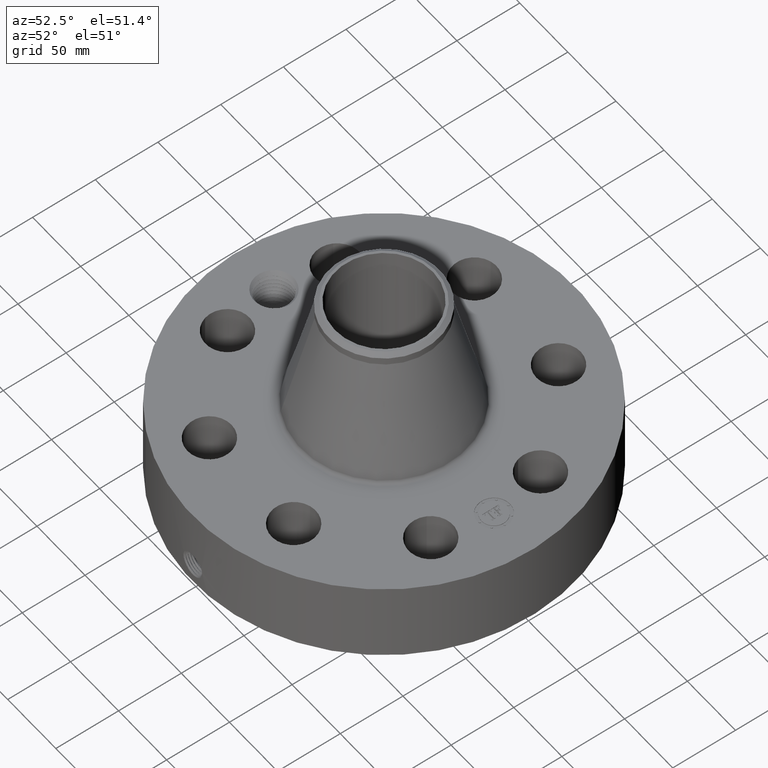
[diagram: clean part render]
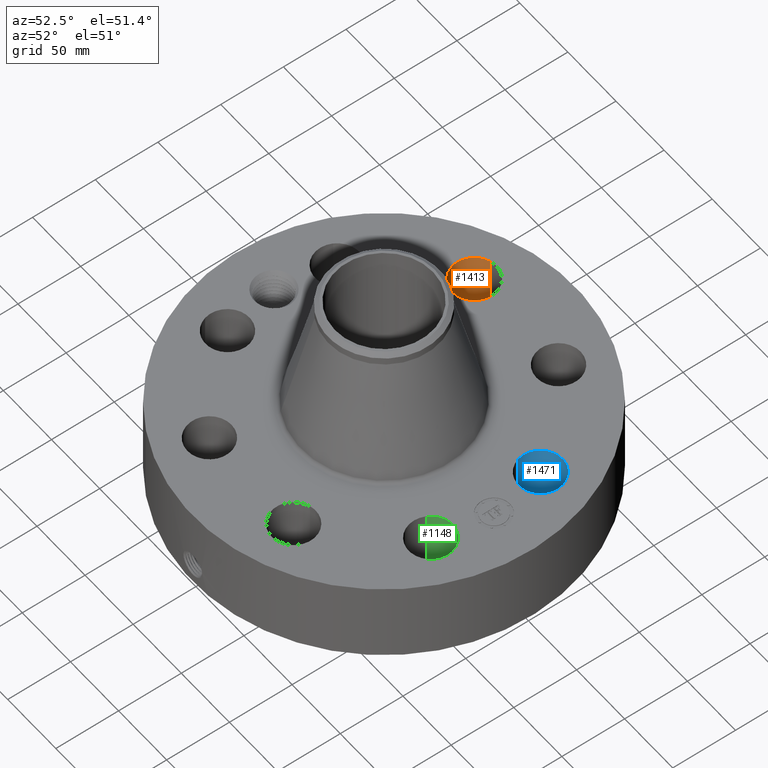
[diagram: same view with three faces highlighted in distinct colors, each labeled with its STEP entity id]
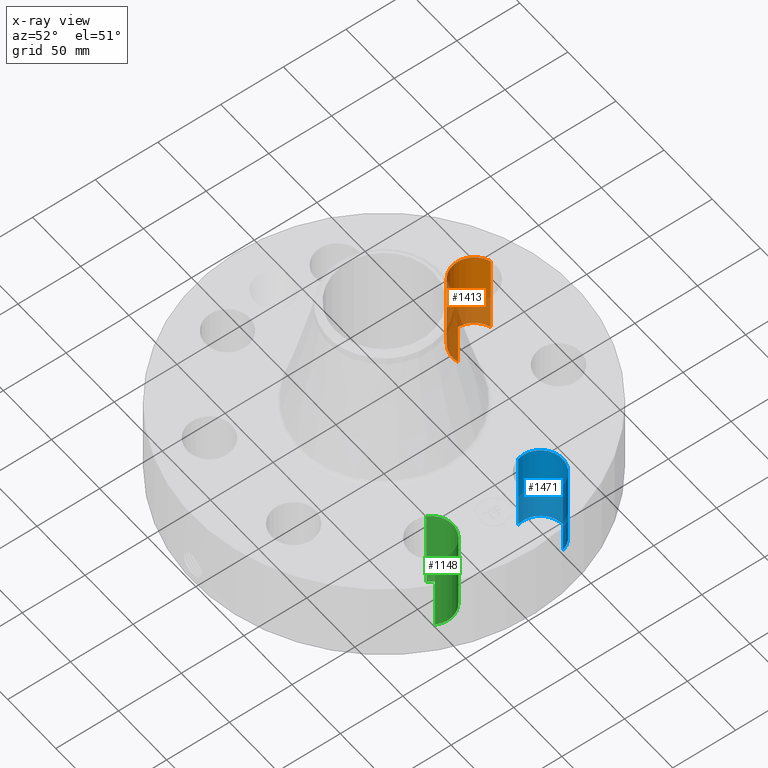
[diagram: x-ray of the same camera — body ghosted, the three highlighted faces saturated]
A machine part, auxiliary view with three faces highlighted in distinct colors.
The next image is the same camera in x-ray (body ghosted, the three faces saturated) — at least one of them is partly hidden behind the body in this view.
Their STEP definitions:

[orange] entity #1413 — the highlighted cylindrical surface (edge-blend (fillet) strip) has radius 17.526 mm, axis along (0, 0, -1).
#336=AXIS2_PLACEMENT_3D('Circle Axis2P3D',#334,#335,$) ;
#666=AXIS2_PLACEMENT_3D('Circle Axis2P3D',#664,#665,$) ;
#1395=AXIS2_PLACEMENT_3D('Cylinder Axis2P3D',#1392,#1393,#1394) ;
#334=CARTESIAN_POINT('Axis2P3D Location',(-1.72207544565,4.15745789632,0.250000000001)) ;
#338=CARTESIAN_POINT('Vertex',(-1.52781316916,3.49536865163,0.250000000001)) ;
#340=CARTESIAN_POINT('Vertex',(-1.91633772214,4.81954714101,0.250000000001)) ;
#659=CARTESIAN_POINT('Vertex',(-1.91633772214,4.81954714101,2.87000000001)) ;
#661=CARTESIAN_POINT('Vertex',(-1.52781316916,3.49536865163,2.87000000001)) ;
#664=CARTESIAN_POINT('Axis2P3D Location',(-1.72207544565,4.15745789632,2.87000000001)) ;
#1392=CARTESIAN_POINT('Axis2P3D Location',(-1.72207544565,4.15745789632,2.86606299214)) ;
#1397=CARTESIAN_POINT('Line Origine',(-1.52781316916,3.49536865163,1.56000000001)) ;
#1402=CARTESIAN_POINT('Line Origine',(-1.91633772214,4.81954714101,1.56000000001)) ;
#335=DIRECTION('Axis2P3D Direction',(0.,0.,-0.0393700787402)) ;
#665=DIRECTION('Axis2P3D Direction',(0.,0.,-0.0393700787402)) ;
#1393=DIRECTION('Axis2P3D Direction',(0.,0.,-0.0393700787402)) ;
#1394=DIRECTION('Axis2P3D XDirection',(-0.0110842335096,0.0377775444876,0.)) ;
#1398=DIRECTION('Vector Direction',(0.,0.,-0.0393700787402)) ;
#1403=DIRECTION('Vector Direction',(0.,0.,-0.0393700787402)) ;
#1399=VECTOR('Line Direction',#1398,0.0393700787402) ;
#1404=VECTOR('Line Direction',#1403,0.0393700787402) ;
#1408=ORIENTED_EDGE('',*,*,#1401,.F.) ;
#1409=ORIENTED_EDGE('',*,*,#342,.T.) ;
#1410=ORIENTED_EDGE('',*,*,#1406,.T.) ;
#1411=ORIENTED_EDGE('',*,*,#668,.F.) ;
#1413=ADVANCED_FACE('PartBody',(#1412),#1396,.F.) ;
#337=CIRCLE('generated circle',#336,0.690000000003) ;
#667=CIRCLE('generated circle',#666,0.690000000003) ;
#1396=CYLINDRICAL_SURFACE('generated cylinder',#1395,0.690000000003) ;
#342=EDGE_CURVE('',#339,#341,#337,.T.) ;
#668=EDGE_CURVE('',#662,#660,#667,.T.) ;
#1401=EDGE_CURVE('',#339,#662,#1400,.F.) ;
#1406=EDGE_CURVE('',#341,#660,#1405,.F.) ;
#1407=EDGE_LOOP('',(#1408,#1409,#1410,#1411)) ;
#1412=FACE_OUTER_BOUND('',#1407,.T.) ;
#1400=LINE('Line',#1397,#1399) ;
#1405=LINE('Line',#1402,#1404) ;
#339=VERTEX_POINT('',#338) ;
#341=VERTEX_POINT('',#340) ;
#660=VERTEX_POINT('',#659) ;
#662=VERTEX_POINT('',#661) ;

[blue] entity #1471 — the highlighted cylindrical surface (edge-blend (fillet) strip) has radius 17.526 mm, axis along (0, 0, -1).
#372=AXIS2_PLACEMENT_3D('Circle Axis2P3D',#370,#371,$) ;
#702=AXIS2_PLACEMENT_3D('Circle Axis2P3D',#700,#701,$) ;
#1453=AXIS2_PLACEMENT_3D('Cylinder Axis2P3D',#1450,#1451,#1452) ;
#370=CARTESIAN_POINT('Axis2P3D Location',(4.15745789632,1.72207544565,0.250000000001)) ;
#374=CARTESIAN_POINT('Vertex',(3.49536865163,1.52781316916,0.250000000001)) ;
#376=CARTESIAN_POINT('Vertex',(4.81954714101,1.91633772214,0.250000000001)) ;
#695=CARTESIAN_POINT('Vertex',(4.81954714101,1.91633772214,2.87000000001)) ;
#697=CARTESIAN_POINT('Vertex',(3.49536865163,1.52781316916,2.87000000001)) ;
#700=CARTESIAN_POINT('Axis2P3D Location',(4.15745789632,1.72207544565,2.87000000001)) ;
#1450=CARTESIAN_POINT('Axis2P3D Location',(4.15745789632,1.72207544565,2.86606299214)) ;
#1455=CARTESIAN_POINT('Line Origine',(3.49536865163,1.52781316916,1.56000000001)) ;
#1460=CARTESIAN_POINT('Line Origine',(4.81954714101,1.91633772214,1.56000000001)) ;
#371=DIRECTION('Axis2P3D Direction',(0.,0.,-0.0393700787402)) ;
#701=DIRECTION('Axis2P3D Direction',(0.,0.,-0.0393700787402)) ;
#1451=DIRECTION('Axis2P3D Direction',(0.,0.,-0.0393700787402)) ;
#1452=DIRECTION('Axis2P3D XDirection',(0.0377775444876,0.0110842335096,0.)) ;
#1456=DIRECTION('Vector Direction',(0.,0.,-0.0393700787402)) ;
#1461=DIRECTION('Vector Direction',(0.,0.,-0.0393700787402)) ;
#1457=VECTOR('Line Direction',#1456,0.0393700787402) ;
#1462=VECTOR('Line Direction',#1461,0.0393700787402) ;
#1466=ORIENTED_EDGE('',*,*,#1459,.F.) ;
#1467=ORIENTED_EDGE('',*,*,#378,.T.) ;
#1468=ORIENTED_EDGE('',*,*,#1464,.T.) ;
#1469=ORIENTED_EDGE('',*,*,#704,.F.) ;
#1471=ADVANCED_FACE('PartBody',(#1470),#1454,.F.) ;
#373=CIRCLE('generated circle',#372,0.690000000003) ;
#703=CIRCLE('generated circle',#702,0.690000000003) ;
#1454=CYLINDRICAL_SURFACE('generated cylinder',#1453,0.690000000003) ;
#378=EDGE_CURVE('',#375,#377,#373,.T.) ;
#704=EDGE_CURVE('',#698,#696,#703,.T.) ;
#1459=EDGE_CURVE('',#375,#698,#1458,.F.) ;
#1464=EDGE_CURVE('',#377,#696,#1463,.F.) ;
#1465=EDGE_LOOP('',(#1466,#1467,#1468,#1469)) ;
#1470=FACE_OUTER_BOUND('',#1465,.T.) ;
#1458=LINE('Line',#1455,#1457) ;
#1463=LINE('Line',#1460,#1462) ;
#375=VERTEX_POINT('',#374) ;
#377=VERTEX_POINT('',#376) ;
#696=VERTEX_POINT('',#695) ;
#698=VERTEX_POINT('',#697) ;

[green] entity #1148 — the highlighted cylindrical surface (edge-blend (fillet) strip) has radius 17.526 mm, axis along (0, -0, -1).
#237=AXIS2_PLACEMENT_3D('Circle Axis2P3D',#235,#236,$) ;
#549=AXIS2_PLACEMENT_3D('Circle Axis2P3D',#547,#548,$) ;
#1123=AXIS2_PLACEMENT_3D('Cylinder Axis2P3D',#1120,#1121,#1122) ;
#230=CARTESIAN_POINT('Vertex',(4.76298986402,-2.05287906729,0.250000000001)) ;
#232=CARTESIAN_POINT('Vertex',(3.55192592861,-1.39127182401,0.250000000001)) ;
#235=CARTESIAN_POINT('Axis2P3D Location',(4.15745789632,-1.72207544565,0.250000000001)) ;
#547=CARTESIAN_POINT('Axis2P3D Location',(4.15745789632,-1.72207544565,2.87000000001)) ;
#551=CARTESIAN_POINT('Vertex',(3.55192592861,-1.39127182401,2.87000000001)) ;
#553=CARTESIAN_POINT('Vertex',(4.76298986402,-2.05287906729,2.87000000001)) ;
#1120=CARTESIAN_POINT('Axis2P3D Location',(4.15745789632,-1.72207544565,2.86606299214)) ;
#1125=CARTESIAN_POINT('Line Origine',(4.76298986402,-2.05287906729,1.56000000001)) ;
#1130=CARTESIAN_POINT('Line Origine',(3.55192592861,-1.39127182401,1.56000000001)) ;
#236=DIRECTION('Axis2P3D Direction',(0.,0.,-0.0393700787402)) ;
#548=DIRECTION('Axis2P3D Direction',(0.,0.,-0.0393700787402)) ;
#1121=DIRECTION('Axis2P3D Direction',(0.,-0.,-0.0393700787402)) ;
#1122=DIRECTION('Axis2P3D XDirection',(-0.0345504945626,0.0188750212049,0.)) ;
#1126=DIRECTION('Vector Direction',(0.,0.,-0.0393700787402)) ;
#1131=DIRECTION('Vector Direction',(0.,0.,-0.0393700787402)) ;
#1127=VECTOR('Line Direction',#1126,0.0393700787402) ;
#1132=VECTOR('Line Direction',#1131,0.0393700787402) ;
#1143=ORIENTED_EDGE('',*,*,#1134,.F.) ;
#1144=ORIENTED_EDGE('',*,*,#239,.T.) ;
#1145=ORIENTED_EDGE('',*,*,#1129,.T.) ;
#1146=ORIENTED_EDGE('',*,*,#555,.F.) ;
#1148=ADVANCED_FACE('PartBody',(#1147),#1124,.F.) ;
#238=CIRCLE('generated circle',#237,0.690000000003) ;
#550=CIRCLE('generated circle',#549,0.690000000003) ;
#1124=CYLINDRICAL_SURFACE('generated cylinder',#1123,0.690000000003) ;
#239=EDGE_CURVE('',#233,#231,#238,.T.) ;
#555=EDGE_CURVE('',#552,#554,#550,.T.) ;
#1129=EDGE_CURVE('',#231,#554,#1128,.F.) ;
#1134=EDGE_CURVE('',#233,#552,#1133,.F.) ;
#1142=EDGE_LOOP('',(#1143,#1144,#1145,#1146)) ;
#1147=FACE_OUTER_BOUND('',#1142,.T.) ;
#1128=LINE('Line',#1125,#1127) ;
#1133=LINE('Line',#1130,#1132) ;
#231=VERTEX_POINT('',#230) ;
#233=VERTEX_POINT('',#232) ;
#552=VERTEX_POINT('',#551) ;
#554=VERTEX_POINT('',#553) ;